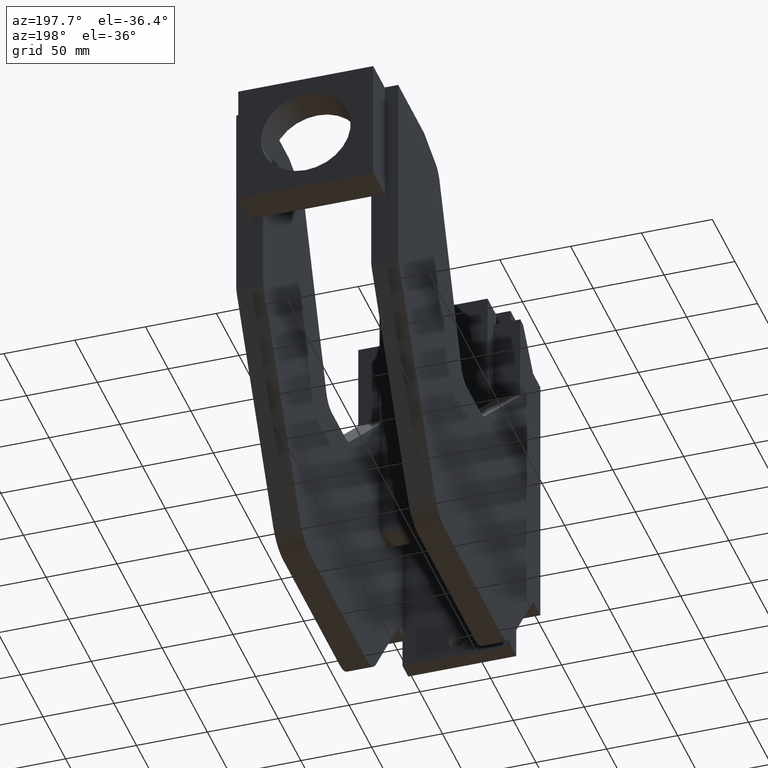
[diagram: clean part render]
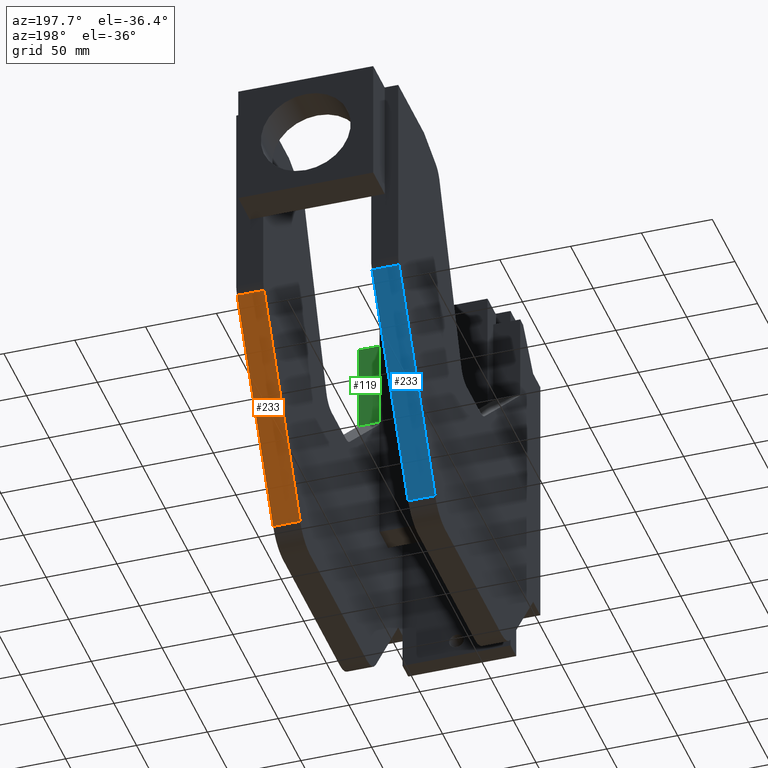
[diagram: same view with three faces highlighted in distinct colors, each labeled with its STEP entity id]
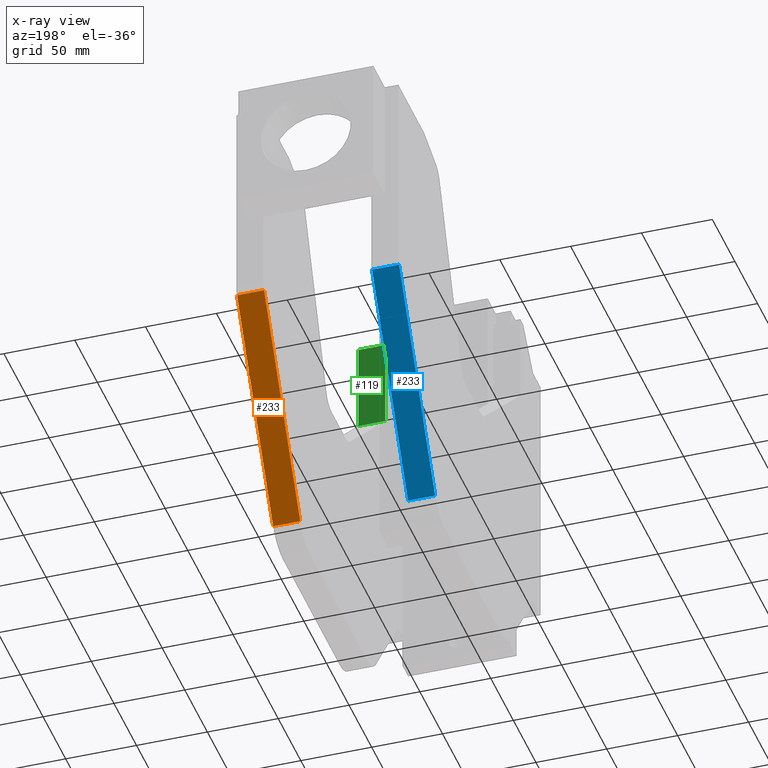
[diagram: x-ray of the same camera — body ghosted, the three highlighted faces saturated]
A machine part, auxiliary view with three faces highlighted in distinct colors.
The next image is the same camera in x-ray (body ghosted, the three faces saturated) — at least one of them is partly hidden behind the body in this view.
Their STEP definitions:

[orange] entity #233 — the highlighted planar face has unit normal (-0, -0.8638, 0.5039).
#222 = VERTEX_POINT ( 'NONE', #906 ) ;
#223 = ORIENTED_EDGE ( 'NONE', *, *, #224, .F. ) ;
#224 = EDGE_CURVE ( 'NONE', #229, #222, #905, .T. ) ;
#225 = ORIENTED_EDGE ( 'NONE', *, *, #228, .T. ) ;
#226 = VERTEX_POINT ( 'NONE', #901 ) ;
#228 = EDGE_CURVE ( 'NONE', #229, #226, #900, .T. ) ;
#229 = VERTEX_POINT ( 'NONE', #896 ) ;
#233 = ADVANCED_FACE ( 'NONE', ( #895 ), #952, .F. ) ;
#234 = EDGE_LOOP ( 'NONE', ( #235, #238, #223, #225 ) ) ;
#235 = ORIENTED_EDGE ( 'NONE', *, *, #236, .T. ) ;
#236 = EDGE_CURVE ( 'NONE', #226, #237, #947, .T. ) ;
#237 = VERTEX_POINT ( 'NONE', #943 ) ;
#238 = ORIENTED_EDGE ( 'NONE', *, *, #239, .F. ) ;
#239 = EDGE_CURVE ( 'NONE', #222, #237, #942, .T. ) ;
#895 = FACE_OUTER_BOUND ( 'NONE', #234, .T. ) ;
#896 = CARTESIAN_POINT ( 'NONE',  ( 30.47231215846109400, 25.76140611793252000, 0.7500000000000005600 ) ) ;
#897 = DIRECTION ( 'NONE',  ( -1.405158487424903800E-030, 1.487357257999809700E-030, -1.000000000000000000 ) ) ;
#898 = VECTOR ( 'NONE', #897, 39.37007874015748100 ) ;
#899 = CARTESIAN_POINT ( 'NONE',  ( 30.47231215846109400, 25.76140611793252000, 0.7500000000000005600 ) ) ;
#900 = LINE ( 'NONE', #899, #898 ) ;
#901 = CARTESIAN_POINT ( 'NONE',  ( 30.47231215846109400, 25.76140611793252000, -1.365923996832131600E-016 ) ) ;
#902 = DIRECTION ( 'NONE',  ( -0.8637789590534918900, 0.5038709258296868400, -2.107737731137360400E-030 ) ) ;
#903 = VECTOR ( 'NONE', #902, 39.37007874015748100 ) ;
#904 = CARTESIAN_POINT ( 'NONE',  ( 25.08520141058638200, 28.90388655419254600, 0.7500000000000005600 ) ) ;
#905 = LINE ( 'NONE', #904, #903 ) ;
#906 = CARTESIAN_POINT ( 'NONE',  ( 25.08520141058637900, 28.90388655419253900, 0.7500000000000005600 ) ) ;
#939 = DIRECTION ( 'NONE',  ( -1.405158487424903800E-030, 1.487357257999809700E-030, -1.000000000000000000 ) ) ;
#940 = VECTOR ( 'NONE', #939, 39.37007874015748100 ) ;
#941 = CARTESIAN_POINT ( 'NONE',  ( 25.08520141058637900, 28.90388655419253900, 0.7500000000000005600 ) ) ;
#942 = LINE ( 'NONE', #941, #940 ) ;
#943 = CARTESIAN_POINT ( 'NONE',  ( 25.08520141058637900, 28.90388655419253900, 0.0000000000000000000 ) ) ;
#944 = DIRECTION ( 'NONE',  ( -0.8637789590534918900, 0.5038709258296868400, -2.107737731137360400E-030 ) ) ;
#945 = VECTOR ( 'NONE', #944, 39.37007874015748100 ) ;
#946 = CARTESIAN_POINT ( 'NONE',  ( 25.08520141058638200, 28.90388655419254600, 0.0000000000000000000 ) ) ;
#947 = LINE ( 'NONE', #946, #945 ) ;
#948 = DIRECTION ( 'NONE',  ( 0.8637789590534920000, -0.5038709258296867300, 2.107737731137360100E-030 ) ) ;
#949 = DIRECTION ( 'NONE',  ( -0.5038709258296867300, -0.8637789590534920000, 2.341930812375201100E-031 ) ) ;
#950 = CARTESIAN_POINT ( 'NONE',  ( 25.08520141058638200, 28.90388655419254600, 0.7500000000000005600 ) ) ;
#951 = AXIS2_PLACEMENT_3D ( 'NONE', #950, #949, #948 ) ;
#952 = PLANE ( 'NONE',  #951 ) ;

[blue] entity #233 — the highlighted planar face has unit normal (-0, -0.8638, 0.5039).
#222 = VERTEX_POINT ( 'NONE', #906 ) ;
#223 = ORIENTED_EDGE ( 'NONE', *, *, #224, .F. ) ;
#224 = EDGE_CURVE ( 'NONE', #229, #222, #905, .T. ) ;
#225 = ORIENTED_EDGE ( 'NONE', *, *, #228, .T. ) ;
#226 = VERTEX_POINT ( 'NONE', #901 ) ;
#228 = EDGE_CURVE ( 'NONE', #229, #226, #900, .T. ) ;
#229 = VERTEX_POINT ( 'NONE', #896 ) ;
#233 = ADVANCED_FACE ( 'NONE', ( #895 ), #952, .F. ) ;
#234 = EDGE_LOOP ( 'NONE', ( #235, #238, #223, #225 ) ) ;
#235 = ORIENTED_EDGE ( 'NONE', *, *, #236, .T. ) ;
#236 = EDGE_CURVE ( 'NONE', #226, #237, #947, .T. ) ;
#237 = VERTEX_POINT ( 'NONE', #943 ) ;
#238 = ORIENTED_EDGE ( 'NONE', *, *, #239, .F. ) ;
#239 = EDGE_CURVE ( 'NONE', #222, #237, #942, .T. ) ;
#895 = FACE_OUTER_BOUND ( 'NONE', #234, .T. ) ;
#896 = CARTESIAN_POINT ( 'NONE',  ( 30.47231215846109400, 25.76140611793252000, 0.7500000000000005600 ) ) ;
#897 = DIRECTION ( 'NONE',  ( -1.405158487424903800E-030, 1.487357257999809700E-030, -1.000000000000000000 ) ) ;
#898 = VECTOR ( 'NONE', #897, 39.37007874015748100 ) ;
#899 = CARTESIAN_POINT ( 'NONE',  ( 30.47231215846109400, 25.76140611793252000, 0.7500000000000005600 ) ) ;
#900 = LINE ( 'NONE', #899, #898 ) ;
#901 = CARTESIAN_POINT ( 'NONE',  ( 30.47231215846109400, 25.76140611793252000, -1.365923996832131600E-016 ) ) ;
#902 = DIRECTION ( 'NONE',  ( -0.8637789590534918900, 0.5038709258296868400, -2.107737731137360400E-030 ) ) ;
#903 = VECTOR ( 'NONE', #902, 39.37007874015748100 ) ;
#904 = CARTESIAN_POINT ( 'NONE',  ( 25.08520141058638200, 28.90388655419254600, 0.7500000000000005600 ) ) ;
#905 = LINE ( 'NONE', #904, #903 ) ;
#906 = CARTESIAN_POINT ( 'NONE',  ( 25.08520141058637900, 28.90388655419253900, 0.7500000000000005600 ) ) ;
#939 = DIRECTION ( 'NONE',  ( -1.405158487424903800E-030, 1.487357257999809700E-030, -1.000000000000000000 ) ) ;
#940 = VECTOR ( 'NONE', #939, 39.37007874015748100 ) ;
#941 = CARTESIAN_POINT ( 'NONE',  ( 25.08520141058637900, 28.90388655419253900, 0.7500000000000005600 ) ) ;
#942 = LINE ( 'NONE', #941, #940 ) ;
#943 = CARTESIAN_POINT ( 'NONE',  ( 25.08520141058637900, 28.90388655419253900, 0.0000000000000000000 ) ) ;
#944 = DIRECTION ( 'NONE',  ( -0.8637789590534918900, 0.5038709258296868400, -2.107737731137360400E-030 ) ) ;
#945 = VECTOR ( 'NONE', #944, 39.37007874015748100 ) ;
#946 = CARTESIAN_POINT ( 'NONE',  ( 25.08520141058638200, 28.90388655419254600, 0.0000000000000000000 ) ) ;
#947 = LINE ( 'NONE', #946, #945 ) ;
#948 = DIRECTION ( 'NONE',  ( 0.8637789590534920000, -0.5038709258296867300, 2.107737731137360100E-030 ) ) ;
#949 = DIRECTION ( 'NONE',  ( -0.5038709258296867300, -0.8637789590534920000, 2.341930812375201100E-031 ) ) ;
#950 = CARTESIAN_POINT ( 'NONE',  ( 25.08520141058638200, 28.90388655419254600, 0.7500000000000005600 ) ) ;
#951 = AXIS2_PLACEMENT_3D ( 'NONE', #950, #949, #948 ) ;
#952 = PLANE ( 'NONE',  #951 ) ;

[green] entity #119 — the highlighted planar face has unit normal (-0, -1, 0).
#119 = ADVANCED_FACE ( 'NONE', ( #717 ), #716, .F. ) ;
#120 = EDGE_LOOP ( 'NONE', ( #161, #165, #168, #171 ) ) ;
#161 = ORIENTED_EDGE ( 'NONE', *, *, #162, .T. ) ;
#162 = EDGE_CURVE ( 'NONE', #163, #164, #767, .T. ) ;
#163 = VERTEX_POINT ( 'NONE', #763 ) ;
#164 = VERTEX_POINT ( 'NONE', #762 ) ;
#165 = ORIENTED_EDGE ( 'NONE', *, *, #166, .F. ) ;
#166 = EDGE_CURVE ( 'NONE', #167, #164, #826, .T. ) ;
#167 = VERTEX_POINT ( 'NONE', #822 ) ;
#168 = ORIENTED_EDGE ( 'NONE', *, *, #169, .F. ) ;
#169 = EDGE_CURVE ( 'NONE', #170, #167, #821, .T. ) ;
#170 = VERTEX_POINT ( 'NONE', #817 ) ;
#171 = ORIENTED_EDGE ( 'NONE', *, *, #172, .T. ) ;
#172 = EDGE_CURVE ( 'NONE', #170, #163, #816, .T. ) ;
#712 = DIRECTION ( 'NONE',  ( -1.405158487424903500E-030, 1.450379403067574800E-030, -1.000000000000000000 ) ) ;
#713 = DIRECTION ( 'NONE',  ( -3.747089299799806800E-030, -1.000000000000000000, -1.450379403067574800E-030 ) ) ;
#714 = CARTESIAN_POINT ( 'NONE',  ( 19.46844123263079100, 18.34699707466535700, 0.7500000000000116600 ) ) ;
#715 = AXIS2_PLACEMENT_3D ( 'NONE', #714, #713, #712 ) ;
#716 = PLANE ( 'NONE',  #715 ) ;
#717 = FACE_OUTER_BOUND ( 'NONE', #120, .T. ) ;
#762 = CARTESIAN_POINT ( 'NONE',  ( 19.46844123263079100, 18.34699707466535700, 0.0000000000000000000 ) ) ;
#763 = CARTESIAN_POINT ( 'NONE',  ( 21.96844123263118900, 18.34699707466535700, 1.147376157338990600E-014 ) ) ;
#764 = DIRECTION ( 'NONE',  ( -1.000000000000000000, -3.155443620883993600E-030, -1.405158487424903600E-030 ) ) ;
#765 = VECTOR ( 'NONE', #764, 39.37007874015748100 ) ;
#766 = CARTESIAN_POINT ( 'NONE',  ( 19.46844123263079100, 18.34699707466535700, 0.0000000000000000000 ) ) ;
#767 = LINE ( 'NONE', #766, #765 ) ;
#813 = DIRECTION ( 'NONE',  ( -1.405158487424903800E-030, 1.487357257999809700E-030, -1.000000000000000000 ) ) ;
#814 = VECTOR ( 'NONE', #813, 39.37007874015748100 ) ;
#815 = CARTESIAN_POINT ( 'NONE',  ( 21.96844123263118900, 18.34699707466535700, 0.7500000000000187600 ) ) ;
#816 = LINE ( 'NONE', #815, #814 ) ;
#817 = CARTESIAN_POINT ( 'NONE',  ( 21.96844123263118900, 18.34699707466535700, 0.7500000000000187600 ) ) ;
#818 = DIRECTION ( 'NONE',  ( -1.000000000000000000, -3.155443620883993600E-030, -1.405158487424903600E-030 ) ) ;
#819 = VECTOR ( 'NONE', #818, 39.37007874015748100 ) ;
#820 = CARTESIAN_POINT ( 'NONE',  ( 19.46844123263079100, 18.34699707466535700, 0.7500000000000116600 ) ) ;
#821 = LINE ( 'NONE', #820, #819 ) ;
#822 = CARTESIAN_POINT ( 'NONE',  ( 19.46844123263079100, 18.34699707466535700, 0.7500000000000116600 ) ) ;
#823 = DIRECTION ( 'NONE',  ( -1.405158487424903800E-030, 1.487357257999809700E-030, -1.000000000000000000 ) ) ;
#824 = VECTOR ( 'NONE', #823, 39.37007874015748100 ) ;
#825 = CARTESIAN_POINT ( 'NONE',  ( 19.46844123263079100, 18.34699707466535700, 0.7500000000000116600 ) ) ;
#826 = LINE ( 'NONE', #825, #824 ) ;